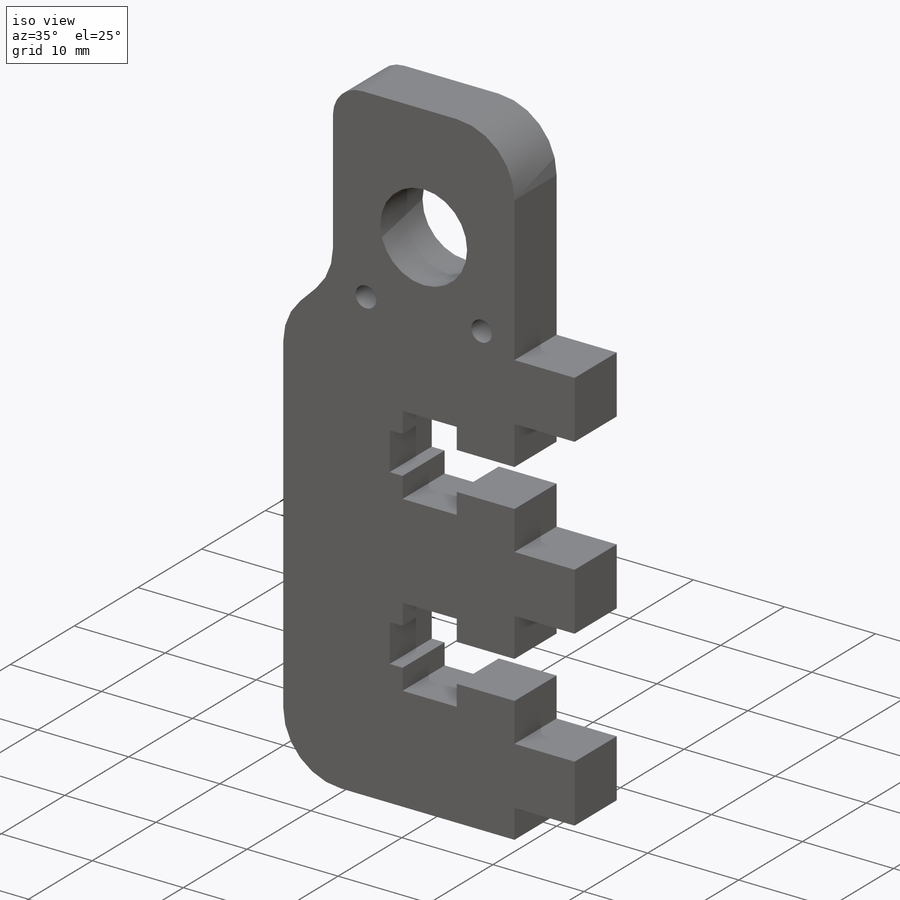
[diagram: iso view]
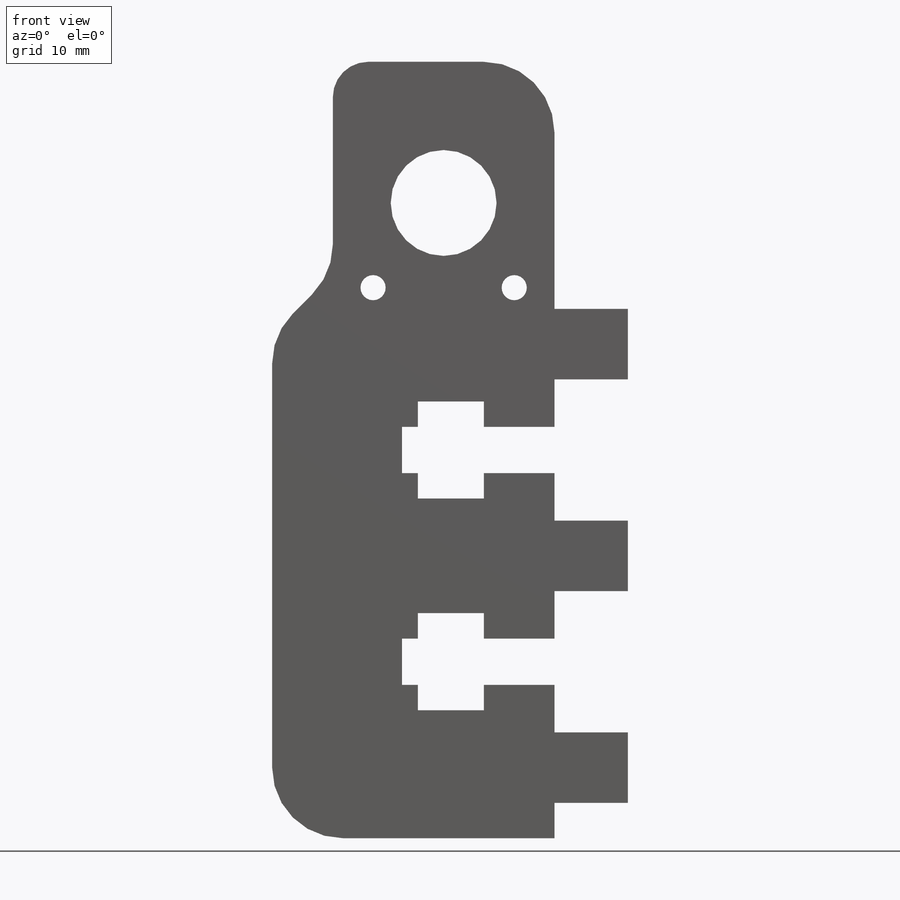
[diagram: front view]
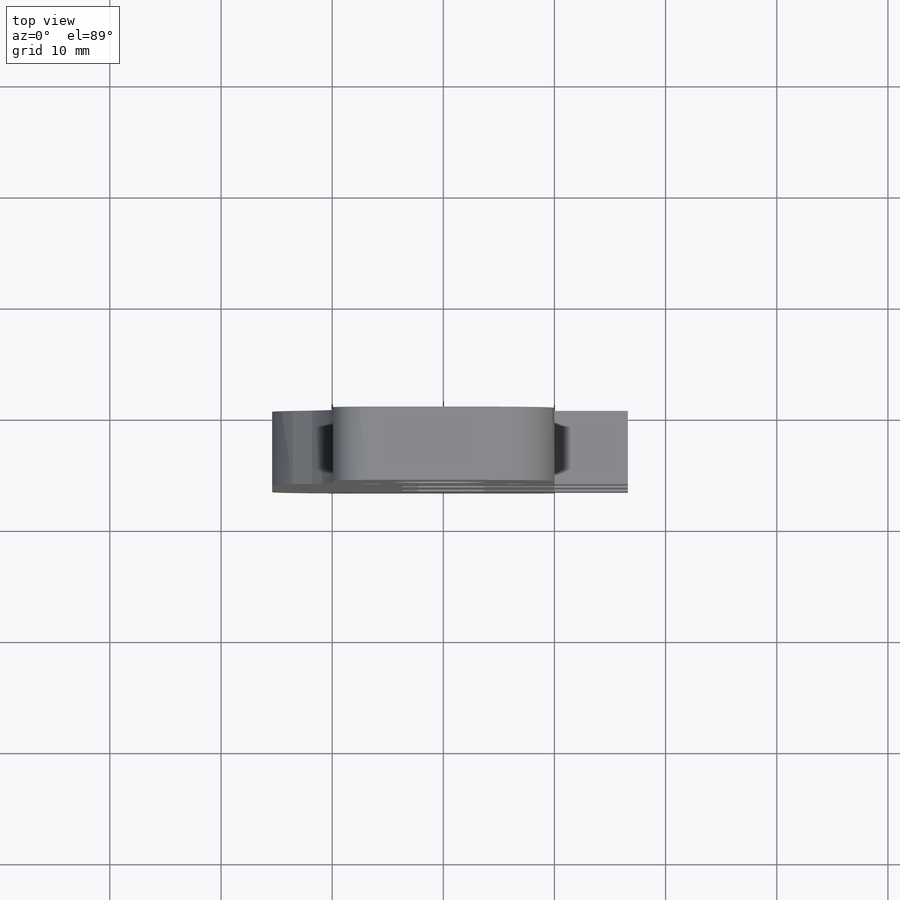
[diagram: top view]
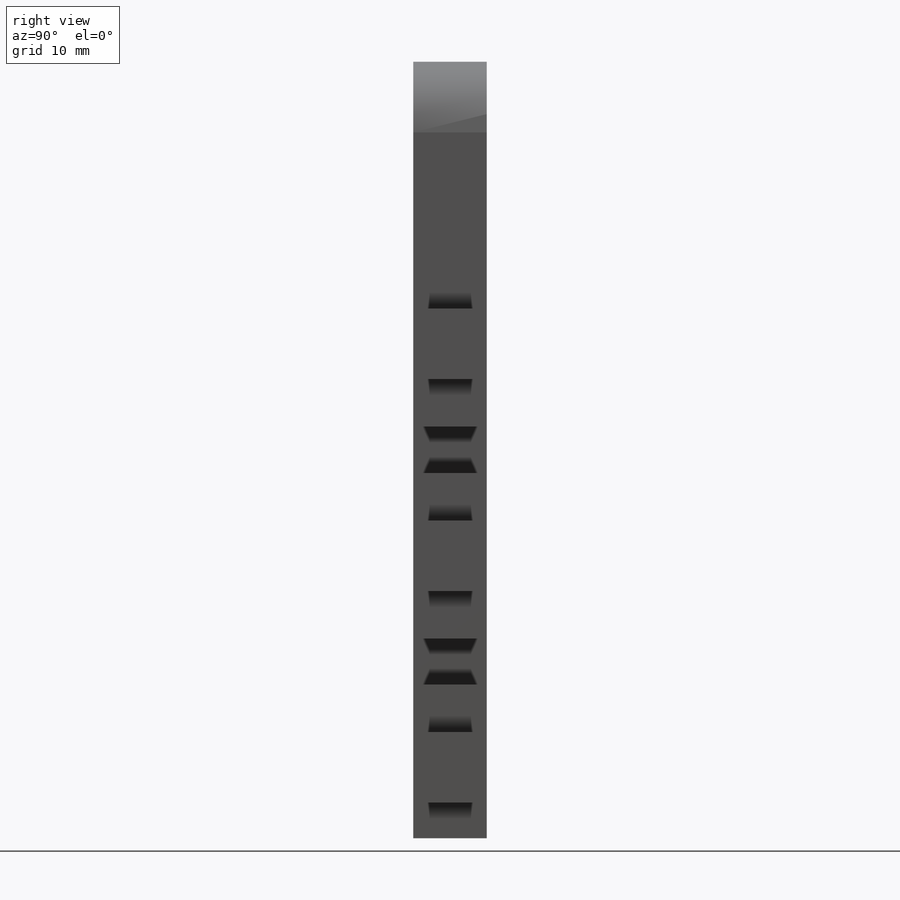
[diagram: right view]
SOLIDWORKS PART (.sldprt)
format: sldprt  version: not decoded by parser v0  size: 625,664 bytes
history: native  units: mm
features: sketch x5, extrude x2, fillet x2, material x1, cut_extrude x1, hole x1 (+12 scaffold rows collapsed)
feature tree (24):
  scaffold x12  (default folders/planes/origin — collapsed)
  material  "Acrylic (Blue)"
  sketch  "Sketch1"  dims[c1.D1=6.35mm c1.D2=4.1656mm c1.D3=25.4mm c1.D4=6.604mm c1.D5=8.7376mm c1.D6=5.9436mm c1.D7=6.35mm c1.D8=20.32mm c1.D9=2.0 c2.D3=9.525mm c2.D4=15.875mm c2.D5=17.399mm c2.D2=17.399mm c2.D6=~23.834569mm c2.D1=17.399mm c2.D7=17.399mm c3.D1=50.8mm c3.D2=25.4mm c4.D1=50.8mm c4.D2=19.05mm c4.D6=~22.532842mm c5.D6=22.5deg c5.D7=22.225mm c5.D1=19.05mm c5.D2=1.27mm c5.D4=57.15mm c6.D1=69.85mm c6.D6=25.4mm c6.D7=6.731mm c6.D8=1.27mm c6.D9=25.4mm c6.D10=25.4mm c7.D10=45.0deg c7.D9=19.05mm c7.D11=3.175mm]
  extrude  "Boss-Extrude1"  Depth=6.604mm
  sketch  "Sketch2"
  cut_extrude  "Cut-Extrude1"  [1 undecoded]
  sketch  "Sketch3"
  extrude  "Boss-Extrude2"  [1 undecoded]
  fillet  "Fillet1"  Radius=6.35mm
  fillet  "Fillet2"  Radius=3.175mm
  hole  "#4-40 Tapped Hole1"  Diameter=2.2606mm Depth=7.5946mm
  sketch  "Sketch5"  dims[D1=20.32mm D2=12.7mm]
  sketch  "Sketch4"  dims[hole-wizard template sketch: 50 standard entries collapsed; hole parameters kept: c15.D1=0.0508mm]
decode coverage: 7 of 11 modeling features carry decoded parameters
note: ~ marks probable driven/reference dimensions
note: 2 parameter values undecoded
note: suppression state not decoded; provenance and decode notes live in map.json
